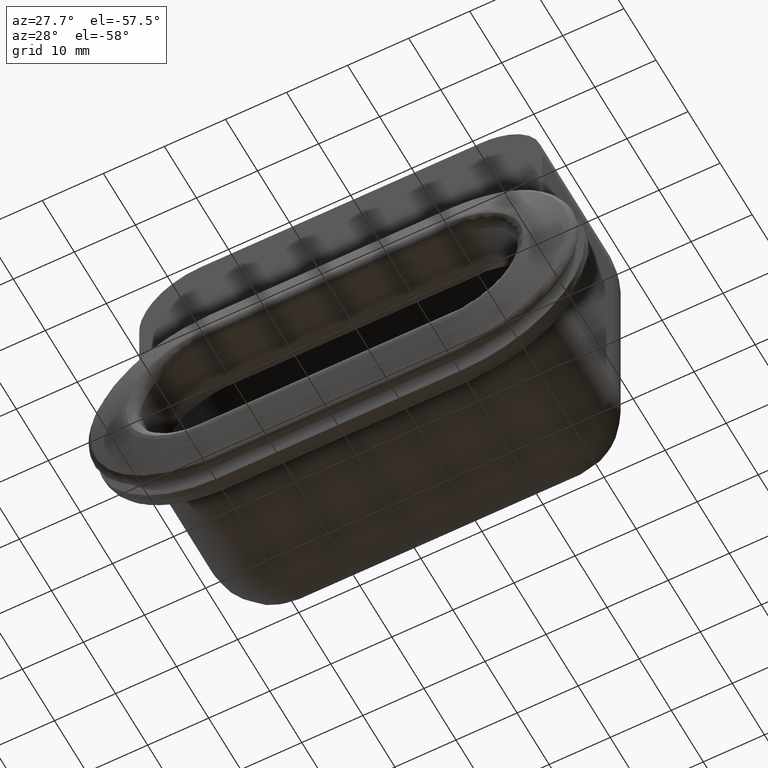
[diagram: clean part render]
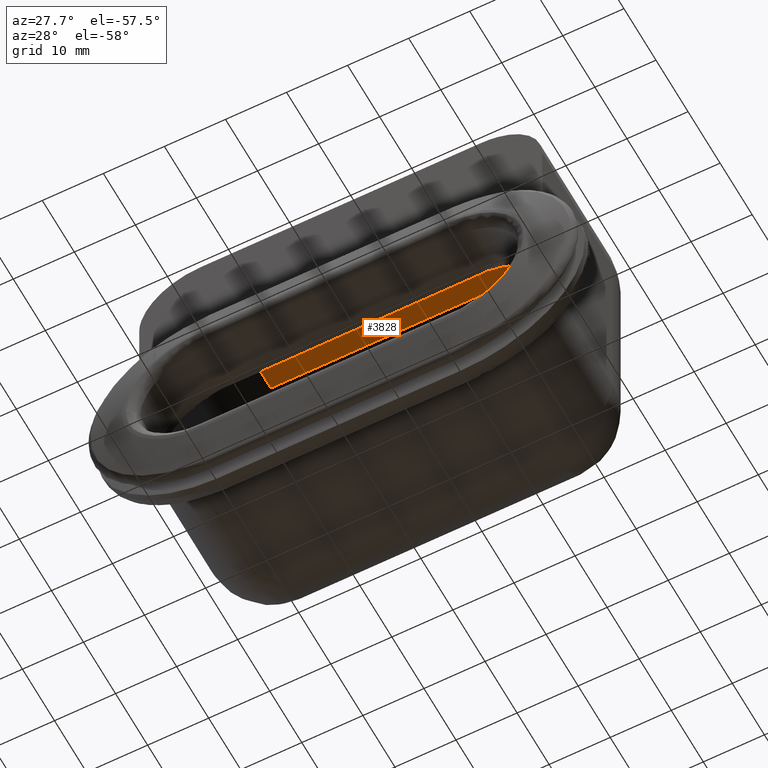
[diagram: same view with one face highlighted and labeled with its STEP entity id]
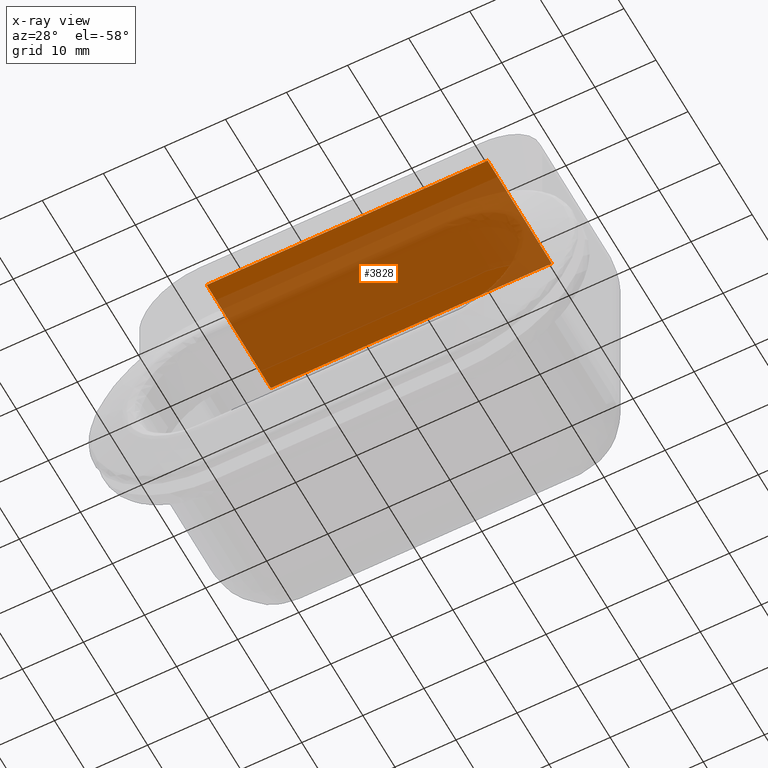
[diagram: x-ray of the same camera — body ghosted, the highlighted face saturated]
A machine part, auxiliary view. The second image highlights one B-rep face of the part: STEP entity #3828.
The next image is the same camera in x-ray: the body ghosted, the highlighted face saturated — about 72% of this face is hidden behind the body in this view.
In plain terms, the highlighted face is a freeform B-spline surface patch.
Its self-contained STEP definition (entity closure, byte-faithful):
#3522=CARTESIAN_POINT('',(23.0,27.0,37.0));
#3523=VERTEX_POINT('',#3522);
#3578=CARTESIAN_POINT('',(-23.0,27.0,37.0));
#3579=VERTEX_POINT('',#3578);
#3624=CARTESIAN_POINT('',(23.0,7.0,37.0));
#3625=VERTEX_POINT('',#3624);
#3641=CARTESIAN_POINT('',(23.0,27.0,37.0));
#3642=CARTESIAN_POINT('',(23.0,7.0,37.0));
#3643=QUASI_UNIFORM_CURVE('',1,(#3641,#3642),.UNSPECIFIED.,.F.,.U.);
#3644=EDGE_CURVE('',#3523,#3625,#3643,.T.);
#3670=CARTESIAN_POINT('',(-23.0,27.0,37.0));
#3671=CARTESIAN_POINT('',(23.0,27.0,37.0));
#3672=QUASI_UNIFORM_CURVE('',1,(#3670,#3671),.UNSPECIFIED.,.F.,.U.);
#3673=EDGE_CURVE('',#3579,#3523,#3672,.T.);
#3700=CARTESIAN_POINT('',(-23.0,7.0,37.0));
#3701=VERTEX_POINT('',#3700);
#3721=CARTESIAN_POINT('',(-23.0,7.0,37.0));
#3722=CARTESIAN_POINT('',(-23.0,27.0,37.0));
#3723=QUASI_UNIFORM_CURVE('',1,(#3721,#3722),.UNSPECIFIED.,.F.,.U.);
#3724=EDGE_CURVE('',#3701,#3579,#3723,.T.);
#3734=CARTESIAN_POINT('',(-23.0,7.0,37.0));
#3735=CARTESIAN_POINT('',(23.0,7.0,37.0));
#3736=QUASI_UNIFORM_CURVE('',1,(#3734,#3735),.UNSPECIFIED.,.F.,.U.);
#3737=EDGE_CURVE('',#3701,#3625,#3736,.T.);
#3817=CARTESIAN_POINT('',(25.297699910843079,6.001000038763882,37.0));
#3818=CARTESIAN_POINT('',(-25.297701144659229,6.001000038763882,37.0));
#3819=CARTESIAN_POINT('',(25.297699910843079,27.999000497677919,37.0));
#3820=CARTESIAN_POINT('',(-25.297701144659229,27.999000497677919,37.0));
#3821=B_SPLINE_SURFACE_WITH_KNOTS('',1,1,((#3817,#3819),(#3818,#3820)),.UNSPECIFIED.,.F.,.F.,.U.,(2,2),(2,2),(0.0,50.595401055502307),(0.0,21.998000458914039),.UNSPECIFIED.);
#3822=ORIENTED_EDGE('',*,*,#3673,.T.);
#3823=ORIENTED_EDGE('',*,*,#3644,.T.);
#3824=ORIENTED_EDGE('',*,*,#3737,.F.);
#3825=ORIENTED_EDGE('',*,*,#3724,.T.);
#3826=EDGE_LOOP('',(#3822,#3823,#3824,#3825));
#3827=FACE_OUTER_BOUND('',#3826,.T.);
#3828=ADVANCED_FACE('',(#3827),#3821,.T.);